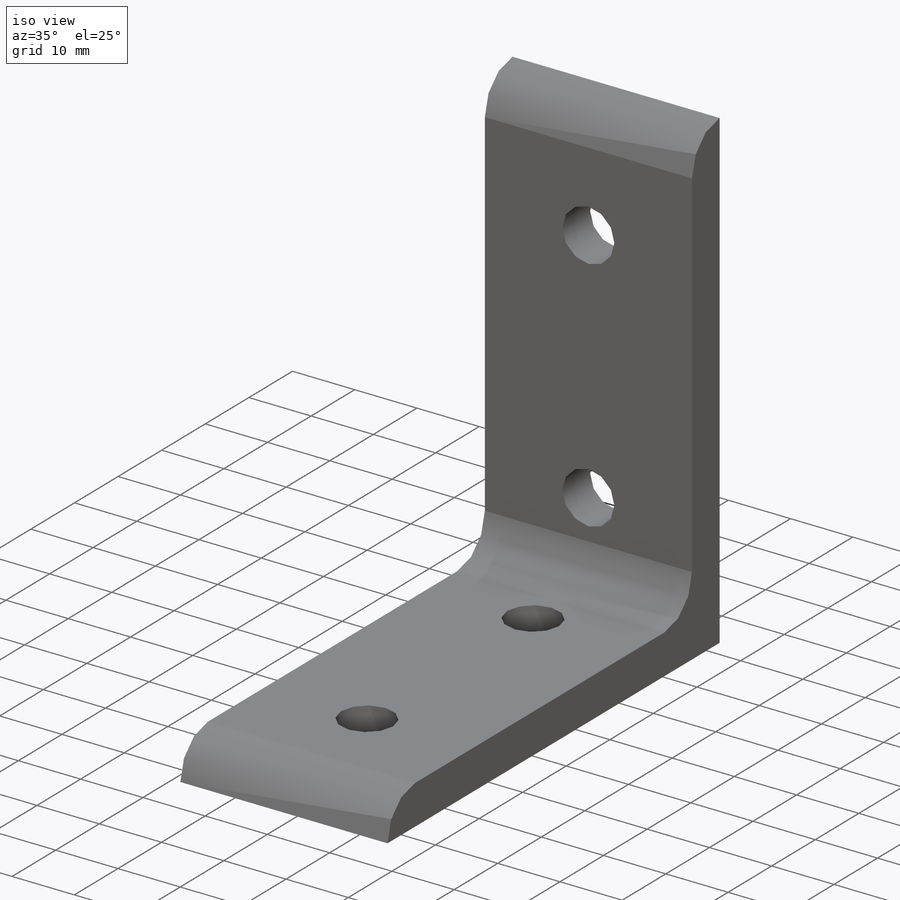
[diagram: iso view]
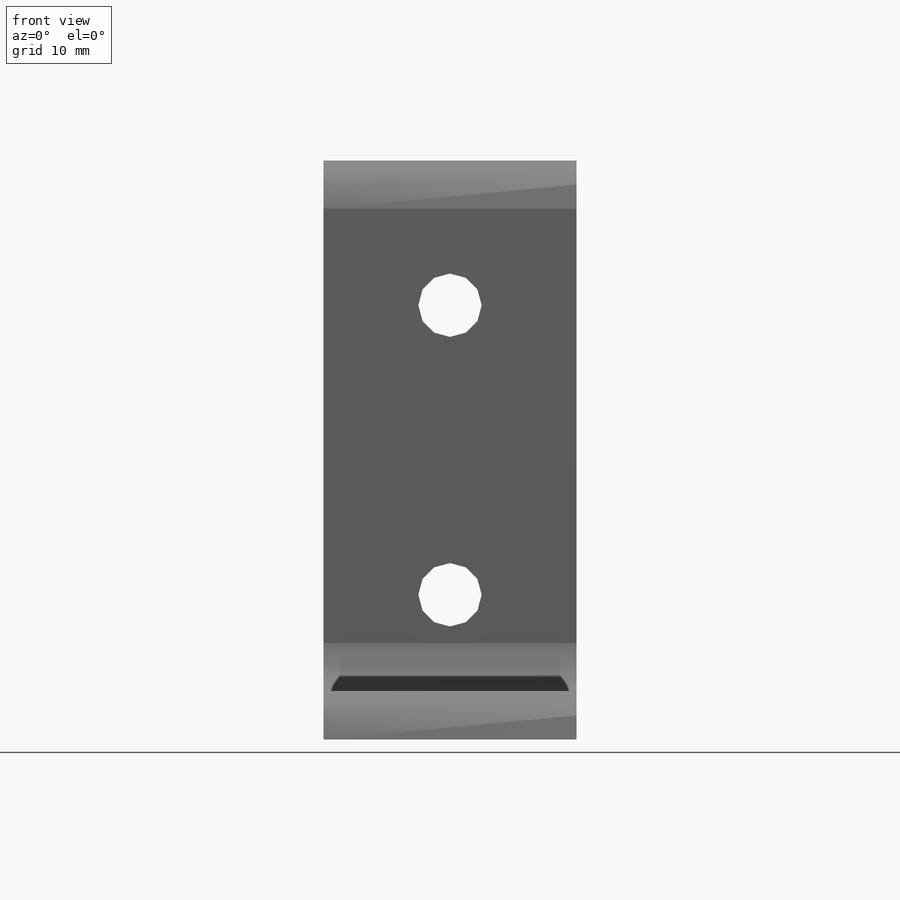
[diagram: front view]
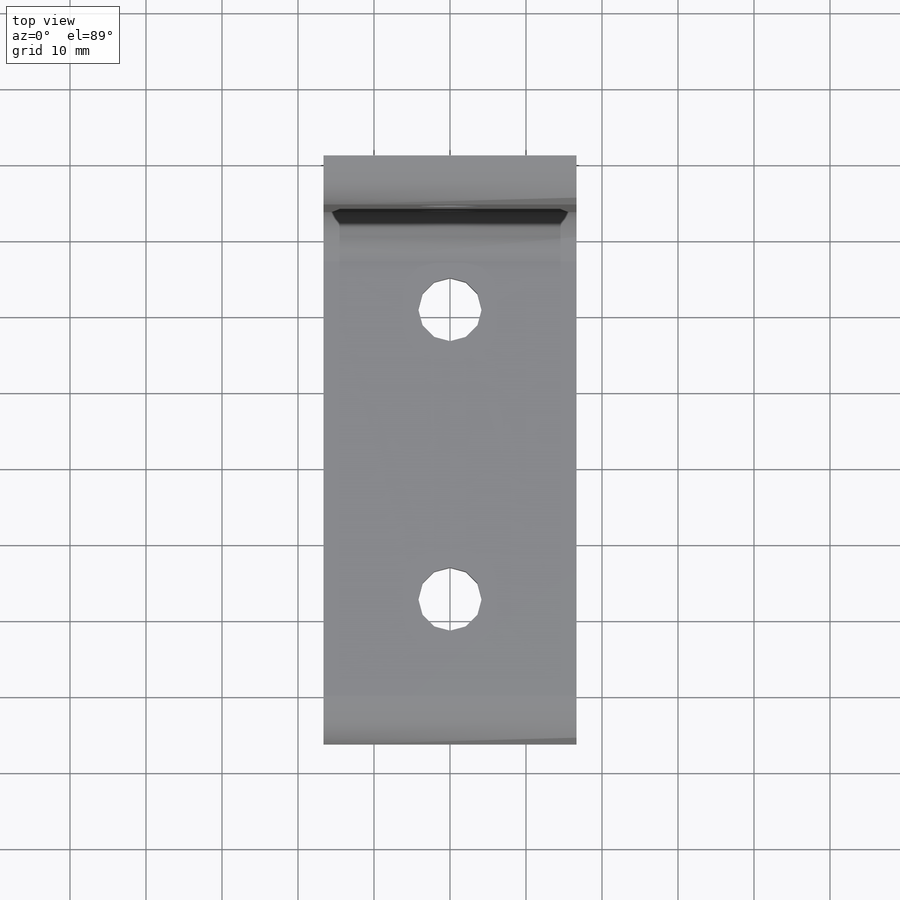
[diagram: top view]
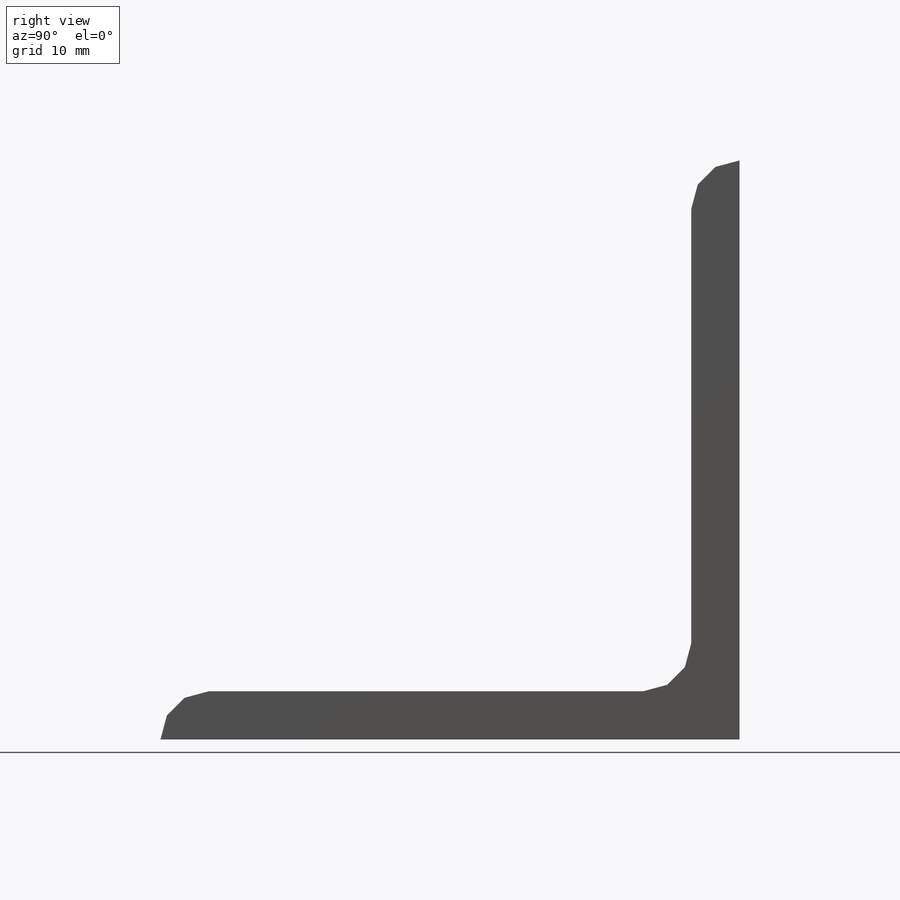
[diagram: right view]
SOLIDWORKS PART (.sldprt)
format: sldprt  version: not decoded by parser v0  size: 613,376 bytes
history: native  units: mm
features: sketch x5, pattern_linear x2, material x1, extrude x1, cut_extrude x1, hole x1 + 1 further entry (+14 scaffold rows collapsed; 3 parser-record rows omitted)
feature tree (29):
  scaffold x14  (default folders/planes/origin — collapsed)
  material  "Material <not specified>"
  parser-record x3  (decoder bookkeeping rows leaked as tree rows — omitted from the tree; the rows remain in map.json)
  "Design Table"
  sketch  "Sketch1"  dims[c1.D4=3.175mm c1.D5=3.1496mm c1.InnerRadius=6.35mm c1.LengthZ=76.2mm c1.HeightY=76.2mm c1.D3=3.175mm c2.D4=~7.352994mm c2.Thick=6.35mm c2.D8=63.5mm]
  extrude  "Base Extrude"  Depth=33.274mm WidthX=33.274mm
  sketch  "Sketch2"  dims[Hole1Diam=8.3312mm D3=~9.16583mm Hole1Z=19.05mm Hole1X=16.637mm]
  cut_extrude  "Hole1"  Depth=159.385mm
  pattern_linear  "Hole1 Pattern"  Count1=1 Count2=2 Spacing1=38.1mm Spacing2=38.1mm NumberX=1 SpacingX=38.1mm NumberZ=2 SpacingZ=38.1mm
  sketch  "Sketch3"  dims[c1.D2=~13.14096mm c1.D3=6.5278mm c2.D2=6.5278mm c2.Hole2Diam=8.3312mm c2.Hole2Y=19.05mm c2.Hole2X=16.637mm]
  hole  "Hole2"  Diameter=57.785mm
  pattern_linear  "Hole2 Pattern"  Count1=1 Count2=2 Spacing1=38.1mm Spacing2=38.1mm NumberX=1 SpacingX=38.1mm NumberY=2 SpacingY=38.1mm
  sketch  "Sketch4"  dims[Corner1X=19.05mm D2=63.5mm]
  sketch  "Sketch5"  dims[Corner2X=19.05mm D2=63.5mm]
decode coverage: 10 of 10 modeling features carry decoded parameters; 1 rows unclassified (native names shown)
note: ~ marks probable driven/reference dimensions
note: suppression state not decoded; provenance and decode notes live in map.json
